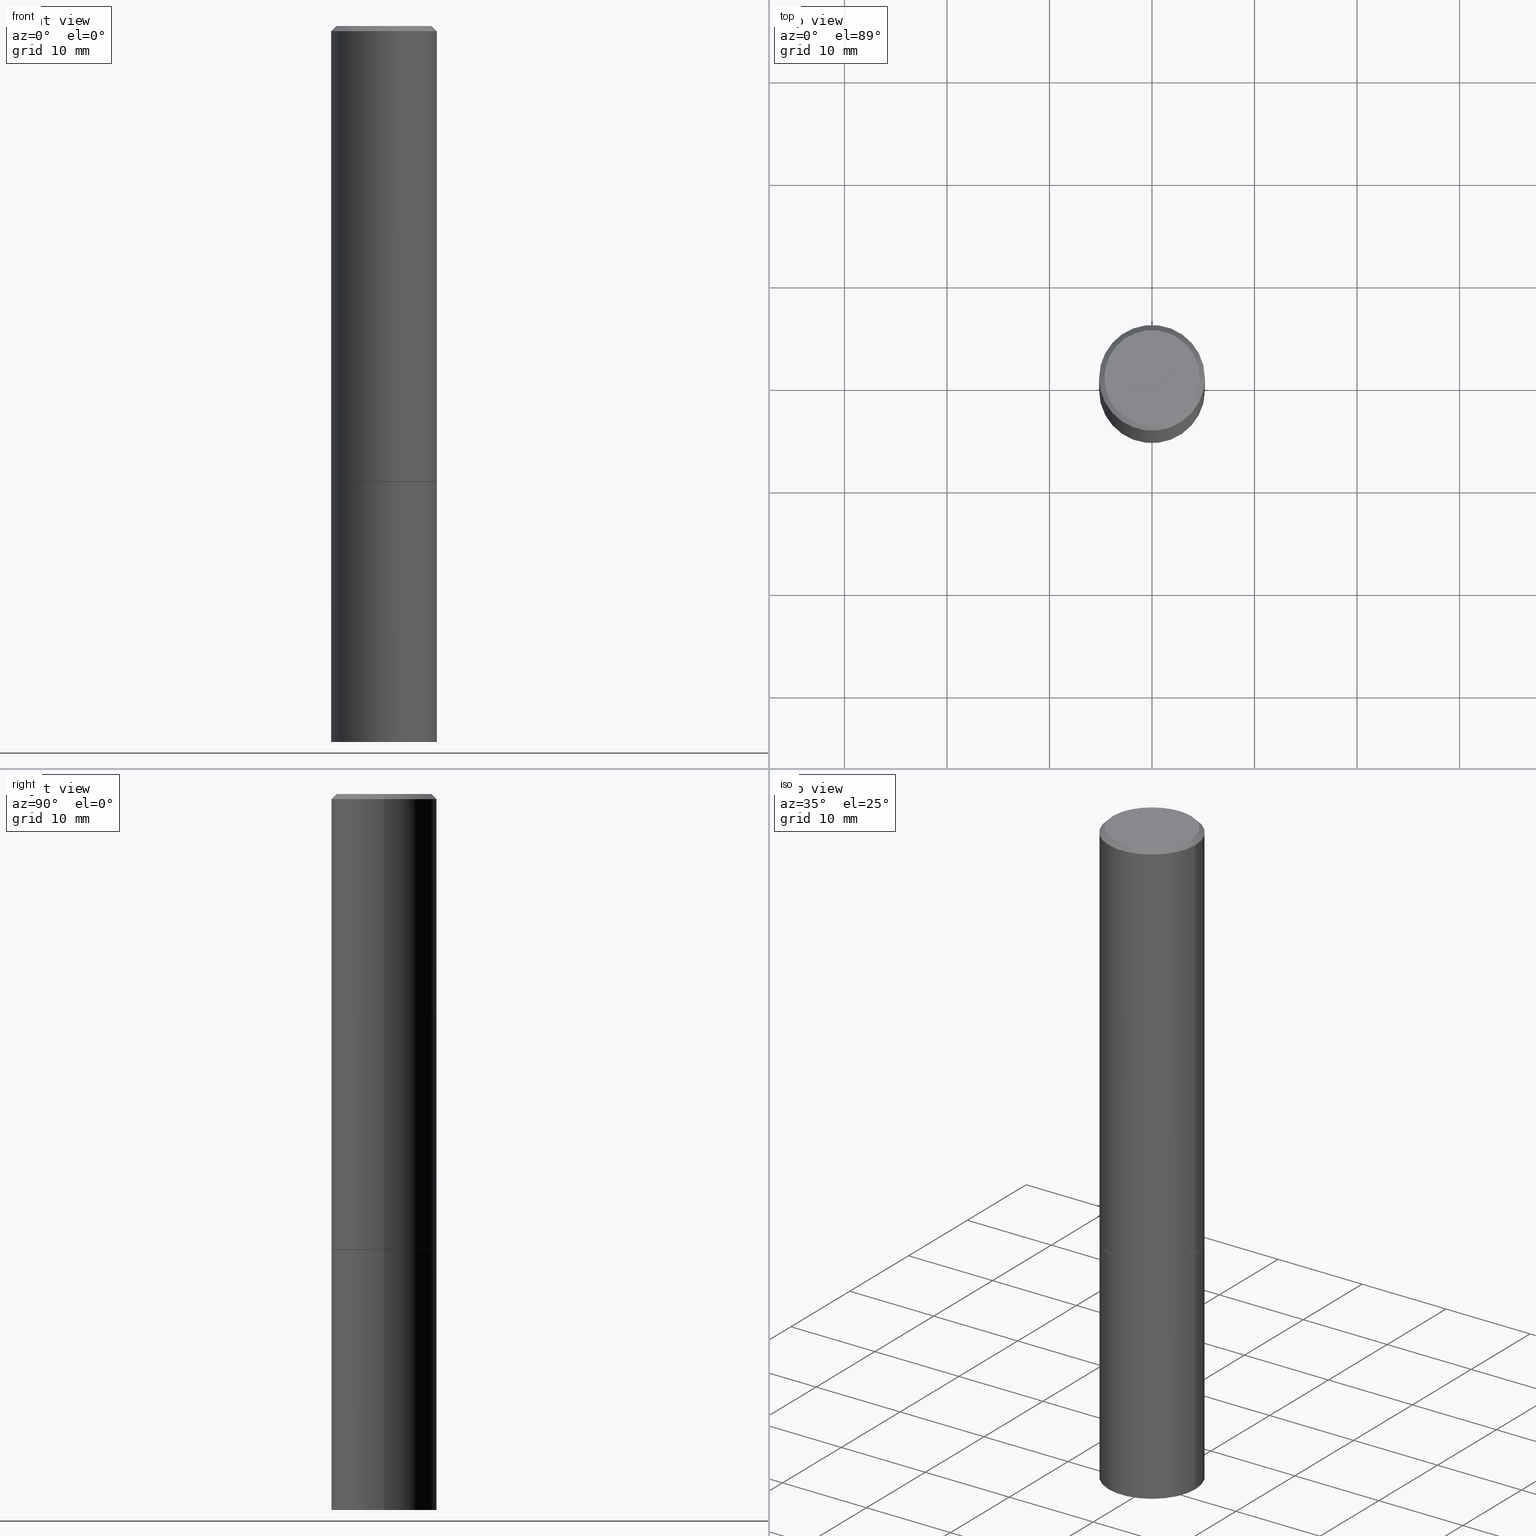
[diagram: canonical four-view strip — front | top / right | iso, engineering-drawing reading convention]
A machine part, canonical four-view strip (front | top / right | iso — engineering-drawing reading convention). The complete STEP part file that produces these views, byte-faithful:
ISO-10303-21;
HEADER;
FILE_DESCRIPTION (( 'STEP AP203' ),
    '1' );
FILE_NAME ('39151.STEP',
    '2023-03-21T20:58:42',
    ( '' ),
    ( '' ),
    'SwSTEP 2.0',
    'SolidWorks 2022',
    '' );
FILE_SCHEMA (( 'CONFIG_CONTROL_DESIGN' ));
ENDSEC;

DATA;
#1 = DIRECTION ( 'NONE',  ( 0.7071067811864267805, -2.468850131080992517E-15, 0.7071067811866682540 ) ) ;
#2 = CC_DESIGN_PERSON_AND_ORGANIZATION_ASSIGNMENT ( #91, #379, ( #121 ) ) ;
#3 = EDGE_CURVE ( 'NONE', #354, #133, #80, .T. ) ;
#4 = CARTESIAN_POINT ( 'NONE',  ( 0.2030999999999999472, -1.418239719838080381E-15, 9.903515031641543342E-30 ) ) ;
#5 = AXIS2_PLACEMENT_3D ( 'NONE', #342, #197, #221 ) ;
#6 = DIRECTION ( 'NONE',  ( 2.445468806185136597E-29, -3.491481338843145583E-15, -1.000000000000000000 ) ) ;
#7 = CARTESIAN_POINT ( 'NONE',  ( -0.2030999999999998362, 1.348410093061216491E-15, -0.02000000000000004552 ) ) ;
#8 = DIRECTION ( 'NONE',  ( 1.000000000000000000, -6.982962677686264344E-15, 0.000000000000000000 ) ) ;
#9 = CONICAL_SURFACE ( 'NONE', #161, 751.2258538476739886, 1.518436449235074148 ) ;
#10 = DIRECTION ( 'NONE',  ( 1.000000000000000000, -6.982962677686266711E-15, 4.876176775795935793E-29 ) ) ;
#11 = ORIENTED_EDGE ( 'NONE', *, *, #185, .T. ) ;
#12 = CARTESIAN_POINT ( 'NONE',  ( 0.1830999999999998462, -1.359676976758113188E-15, 9.224940175330600101E-30 ) ) ;
#13 = EDGE_LOOP ( 'NONE', ( #76, #79 ) ) ;
#14 = ADVANCED_FACE ( 'NONE', ( #208 ), #17, .T. ) ;
#15 = CARTESIAN_POINT ( 'NONE',  ( 0.2030999999999997530, -1.099494082516604752E-14, -2.750000000000000000 ) ) ;
#16 = ORIENTED_EDGE ( 'NONE', *, *, #56, .T. ) ;
#17 = CONICAL_SURFACE ( 'NONE', #236, 0.2030999999999998362, 0.7853981633974469467 ) ;
#18 = CC_DESIGN_APPROVAL ( #280, ( #100 ) ) ;
#19 = CARTESIAN_POINT ( 'NONE',  ( -0.1830999999999998462, 1.313495279672785236E-15, -9.063697641761070783E-30 ) ) ;
#20 = ORIENTED_EDGE ( 'NONE', *, *, #56, .F. ) ;
#21 = APPROVAL_DATE_TIME ( #358, #280 ) ;
#22 = ORIENTED_EDGE ( 'NONE', *, *, #339, .F. ) ;
#23 = CALENDAR_DATE ( 2023, 21, 3 ) ;
#24 = ORIENTED_EDGE ( 'NONE', *, *, #192, .T. ) ;
#25 = CIRCLE ( 'NONE', #383, 0.2021000000000000019 ) ;
#26 = APPROVAL_DATE_TIME ( #260, #325 ) ;
#27 = ORIENTED_EDGE ( 'NONE', *, *, #155, .T. ) ;
#28 = COORDINATED_UNIVERSAL_TIME_OFFSET ( 5, 0, .BEHIND. ) ;
#29 = VERTEX_POINT ( 'NONE', #120 ) ;
#30 = EDGE_CURVE ( 'NONE', #298, #92, #232, .T. ) ;
#31 = APPROVAL_ROLE ( '' ) ;
#32 = EDGE_LOOP ( 'NONE', ( #179, #84, #169 ) ) ;
#33 = CLOSED_SHELL ( 'NONE', ( #195, #253, #58, #35, #167 ) ) ;
#34 = DIRECTION ( 'NONE',  ( -2.445468806185136597E-29, 3.491481338843145583E-15, 1.000000000000000000 ) ) ;
#35 = ADVANCED_FACE ( 'NONE', ( #295 ), #363, .T. ) ;
#36 = CARTESIAN_POINT ( 'NONE',  ( 4.279570410823988484E-29, -6.110092342975504671E-15, -1.750000000000000000 ) ) ;
#37 = EDGE_CURVE ( 'NONE', #201, #92, #284, .T. ) ;
#38 = LINE ( 'NONE', #390, #107 ) ;
#39 = CARTESIAN_POINT ( 'NONE',  ( 0.2031000000000000028, -1.418239719838080775E-15, 9.903515031641546145E-30 ) ) ;
#40 = CIRCLE ( 'NONE', #372, 0.2031000000000000028 ) ;
#41 = CARTESIAN_POINT ( 'NONE',  ( 0.000000000000000000, 0.000000000000000000, 0.000000000000000000 ) ) ;
#42 = FACE_OUTER_BOUND ( 'NONE', #255, .T. ) ;
#43 = CARTESIAN_POINT ( 'NONE',  ( 0.2031000000000000028, -7.528332062813585446E-15, -1.750000000000000000 ) ) ;
#44 = AXIS2_PLACEMENT_3D ( 'NONE', #41, #338, #303 ) ;
#45 = CARTESIAN_POINT ( 'NONE',  ( -4.871854198842910760E-19, -9.564410284714797883E-15, -2.739355980027615711 ) ) ;
#46 = EDGE_CURVE ( 'NONE', #173, #259, #269, .T. ) ;
#47 = EDGE_LOOP ( 'NONE', ( #57, #345, #328 ) ) ;
#48 = DIRECTION ( 'NONE',  ( 2.445468806185136597E-29, -3.491481338843145583E-15, -1.000000000000000000 ) ) ;
#49 = ORIENTED_EDGE ( 'NONE', *, *, #30, .T. ) ;
#50 = AXIS2_PLACEMENT_3D ( 'NONE', #69, #166, #239 ) ;
#51 = ORIENTED_EDGE ( 'NONE', *, *, #3, .F. ) ;
#52 = PERSON_AND_ORGANIZATION_ROLE ( 'design_owner' ) ;
#53 = ORIENTED_EDGE ( 'NONE', *, *, #222, .F. ) ;
#54 = AXIS2_PLACEMENT_3D ( 'NONE', #302, #63, #371 ) ;
#55 = LOCAL_TIME ( 16, 58, 42.00000000000000000, #146 ) ;
#56 = EDGE_CURVE ( 'NONE', #165, #173, #38, .T. ) ;
#57 = ORIENTED_EDGE ( 'NONE', *, *, #293, .F. ) ;
#58 = ADVANCED_FACE ( 'NONE', ( #184 ), #9, .F. ) ;
#59 = DATE_AND_TIME ( #23, #157 ) ;
#60 = PRODUCT_DEFINITION_SHAPE ( 'NONE', 'NONE',  #100 ) ;
#61 = CYLINDRICAL_SURFACE ( 'NONE', #294, 0.2031000000000000028 ) ;
#62 = APPROVAL_PERSON_ORGANIZATION ( #360, #325, #86 ) ;
#63 = DIRECTION ( 'NONE',  ( 2.438088387897960049E-29, -3.491481338843145188E-15, -1.000000000000000000 ) ) ;
#64 = DIRECTION ( 'NONE',  ( 1.000000000000000000, -6.982962677686266711E-15, 0.000000000000000000 ) ) ;
#65 = LINE ( 'NONE', #39, #300 ) ;
#66 = AXIS2_PLACEMENT_3D ( 'NONE', #97, #217, #190 ) ;
#67 = CARTESIAN_POINT ( 'NONE',  ( 0.000000000000000000, 0.000000000000000000, 0.000000000000000000 ) ) ;
#68 = LOCAL_TIME ( 16, 58, 42.00000000000000000, #139 ) ;
#69 = CARTESIAN_POINT ( 'NONE',  ( 4.890937612370284544E-31, -6.982962677686307633E-17, -0.02000000000000004552 ) ) ;
#70 = CARTESIAN_POINT ( 'NONE',  ( 0.2030999999999998362, -1.463196770124260168E-15, -0.02000000000000004552 ) ) ;
#71 = ADVANCED_FACE ( 'NONE', ( #123 ), #301, .F. ) ;
#72 = PLANE ( 'NONE',  #362 ) ;
#73 = CC_DESIGN_PERSON_AND_ORGANIZATION_ASSIGNMENT ( #83, #205, ( #238 ) ) ;
#74 = EDGE_CURVE ( 'NONE', #259, #173, #229, .T. ) ;
#75 = DIRECTION ( 'NONE',  ( -2.445468806185136597E-29, 3.491481338843145583E-15, 1.000000000000000000 ) ) ;
#76 = ORIENTED_EDGE ( 'NONE', *, *, #74, .T. ) ;
#77 = AXIS2_PLACEMENT_3D ( 'NONE', #336, #154, #64 ) ;
#78 = FACE_OUTER_BOUND ( 'NONE', #82, .T. ) ;
#79 = ORIENTED_EDGE ( 'NONE', *, *, #46, .T. ) ;
#80 = CIRCLE ( 'NONE', #361, 0.2021000000000000019 ) ;
#81 = AXIS2_PLACEMENT_3D ( 'NONE', #149, #144, #172 ) ;
#82 = EDGE_LOOP ( 'NONE', ( #122, #150, #131, #108 ) ) ;
#83 = PERSON_AND_ORGANIZATION ( #119, #376 ) ;
#84 = ORIENTED_EDGE ( 'NONE', *, *, #293, .T. ) ;
#85 = ADVANCED_FACE ( 'NONE', ( #159 ), #278, .T. ) ;
#86 = APPROVAL_ROLE ( '' ) ;
#87 = EDGE_CURVE ( 'NONE', #133, #348, #365, .T. ) ;
#88 = EDGE_LOOP ( 'NONE', ( #20, #145, #198, #389 ) ) ;
#89 = ADVANCED_BREP_SHAPE_REPRESENTATION ( '39151', ( #343, #207, #81 ), #95 ) ;
#90 = AXIS2_PLACEMENT_3D ( 'NONE', #164, #48, #312 ) ;
#91 = PERSON_AND_ORGANIZATION ( #119, #376 ) ;
#92 = VERTEX_POINT ( 'NONE', #7 ) ;
#93 = DIRECTION ( 'NONE',  ( 1.000000000000000000, -6.982962677686269866E-15, 0.000000000000000000 ) ) ;
#94 = CARTESIAN_POINT ( 'NONE',  ( 0.2021000000000000019, -7.521349100135901010E-15, -1.750000000000000222 ) ) ;
#95 =( GEOMETRIC_REPRESENTATION_CONTEXT ( 3 ) GLOBAL_UNCERTAINTY_ASSIGNED_CONTEXT ( ( #148 ) ) GLOBAL_UNIT_ASSIGNED_CONTEXT ( ( #105, #249, #353 ) ) REPRESENTATION_CONTEXT ( 'NONE', 'WORKASPACE' ) );
#96 = CARTESIAN_POINT ( 'NONE',  ( -0.2031000000000000028, -6.412720716068313768E-15, -1.750000000000000000 ) ) ;
#97 = CARTESIAN_POINT ( 'NONE',  ( 0.000000000000000000, 0.000000000000000000, 0.000000000000000000 ) ) ;
#98 = CYLINDRICAL_SURFACE ( 'NONE', #44, 0.2030999999999999472 ) ;
#99 = CARTESIAN_POINT ( 'NONE',  ( -0.2030999999999999472, 1.443112296328763103E-15, -9.990357168307711400E-30 ) ) ;
#100 = PRODUCT_DEFINITION ( 'UNKNOWN', '', #238, #380 ) ;
#101 = LENGTH_MEASURE_WITH_UNIT ( LENGTH_MEASURE( 0.02539999999999999897 ), #132 );
#102 = AXIS2_PLACEMENT_3D ( 'NONE', #194, #282, #347 ) ;
#103 = DIRECTION ( 'NONE',  ( 2.438088387897960049E-29, -3.491481338843145188E-15, -1.000000000000000000 ) ) ;
#104 = EDGE_CURVE ( 'NONE', #29, #92, #275, .T. ) ;
#105 =( CONVERSION_BASED_UNIT ( 'INCH', #101 ) LENGTH_UNIT ( ) NAMED_UNIT ( #350 ) );
#106 = LINE ( 'NONE', #307, #203 ) ;
#107 = VECTOR ( 'NONE', #272, 39.37007874015748143 ) ;
#108 = ORIENTED_EDGE ( 'NONE', *, *, #192, .F. ) ;
#109 = DIRECTION ( 'NONE',  ( 1.000000000000000000, -6.982962677686269077E-15, 0.000000000000000000 ) ) ;
#110 = DATE_TIME_ROLE ( 'classification_date' ) ;
#111 = COORDINATED_UNIVERSAL_TIME_OFFSET ( 5, 0, .BEHIND. ) ;
#112 = DIRECTION ( 'NONE',  ( -0.7071067811865465735, 2.468850131082246805E-15, -0.7071067811865484609 ) ) ;
#113 = AXIS2_PLACEMENT_3D ( 'NONE', #276, #370, #153 ) ;
#114 = VECTOR ( 'NONE', #212, 39.37007874015748143 ) ;
#115 = DIRECTION ( 'NONE',  ( 1.000000000000000000, -6.982962677686269077E-15, 0.000000000000000000 ) ) ;
#116 = APPROVAL ( #351, 'UNSPECIFIED' ) ;
#117 = CC_DESIGN_PERSON_AND_ORGANIZATION_ASSIGNMENT ( #384, #235, ( #100 ) ) ;
#118 = PERSON_AND_ORGANIZATION ( #119, #376 ) ;
#119 = PERSON ( 'UNSPECIFIED', 'UNSPECIFIED', 'UNSPECIFIED', ('UNSPECIFIED'), ('UNSPECIFIED'), ('UNSPECIFIED') ) ;
#120 = CARTESIAN_POINT ( 'NONE',  ( -0.2031000000000000583, -1.645102947877997012E-15, -1.748999999999999888 ) ) ;
#121 = SECURITY_CLASSIFICATION ( '', '', #324 ) ;
#122 = ORIENTED_EDGE ( 'NONE', *, *, #262, .T. ) ;
#123 = FACE_OUTER_BOUND ( 'NONE', #171, .T. ) ;
#124 = DIRECTION ( 'NONE',  ( 1.000000000000000000, -6.982962677686264344E-15, 0.000000000000000000 ) ) ;
#125 = FACE_OUTER_BOUND ( 'NONE', #234, .T. ) ;
#126 = CC_DESIGN_PERSON_AND_ORGANIZATION_ASSIGNMENT ( #387, #52, ( #337 ) ) ;
#127 = DIRECTION ( 'NONE',  ( -2.438088387897960049E-29, 3.491481338843145188E-15, 1.000000000000000000 ) ) ;
#128 = DIRECTION ( 'NONE',  ( -2.445468806185136597E-29, 3.491481338843145583E-15, 1.000000000000000000 ) ) ;
#129 = CARTESIAN_POINT ( 'NONE',  ( -0.2021000000000000019, -4.668787019656119386E-15, -1.750000000000000222 ) ) ;
#130 = APPROVAL_PERSON_ORGANIZATION ( #290, #280, #264 ) ;
#131 = ORIENTED_EDGE ( 'NONE', *, *, #37, .F. ) ;
#132 =( LENGTH_UNIT ( ) NAMED_UNIT ( * ) SI_UNIT ( $, .METRE. ) );
#133 = VERTEX_POINT ( 'NONE', #94 ) ;
#134 = LINE ( 'NONE', #70, #137 ) ;
#135 = LINE ( 'NONE', #193, #151 ) ;
#136 = ORIENTED_EDGE ( 'NONE', *, *, #267, .F. ) ;
#137 = VECTOR ( 'NONE', #317, 39.37007874015748143 ) ;
#138 = VERTEX_POINT ( 'NONE', #332 ) ;
#139 = COORDINATED_UNIVERSAL_TIME_OFFSET ( 5, 0, .BEHIND. ) ;
#140 = CARTESIAN_POINT ( 'NONE',  ( 4.279570410823989044E-29, -6.110092342975505460E-15, -1.750000000000000222 ) ) ;
#141 = EDGE_LOOP ( 'NONE', ( #237, #263, #24, #206 ) ) ;
#142 = AXIS2_PLACEMENT_3D ( 'NONE', #364, #388, #93 ) ;
#143 = CC_DESIGN_APPROVAL ( #116, ( #121 ) ) ;
#144 = DIRECTION ( 'NONE',  ( 0.000000000000000000, 0.000000000000000000, 1.000000000000000000 ) ) ;
#145 = ORIENTED_EDGE ( 'NONE', *, *, #377, .T. ) ;
#146 = COORDINATED_UNIVERSAL_TIME_OFFSET ( 5, 0, .BEHIND. ) ;
#147 = DIRECTION ( 'NONE',  ( -1.000000000000000000, 6.982962677686266711E-15, 0.000000000000000000 ) ) ;
#148 = UNCERTAINTY_MEASURE_WITH_UNIT (LENGTH_MEASURE( 1.000000000000000082E-05 ), #105, 'distance_accuracy_value', 'NONE');
#149 = CARTESIAN_POINT ( 'NONE',  ( 0.000000000000000000, 0.000000000000000000, 0.000000000000000000 ) ) ;
#150 = ORIENTED_EDGE ( 'NONE', *, *, #104, .T. ) ;
#151 = VECTOR ( 'NONE', #281, 39.37007874015748143 ) ;
#152 = DIRECTION ( 'NONE',  ( -2.445468806185136597E-29, 3.491481338843145583E-15, 1.000000000000000000 ) ) ;
#153 = DIRECTION ( 'NONE',  ( 1.000000000000000000, -6.982962677686269077E-15, 0.000000000000000000 ) ) ;
#154 = DIRECTION ( 'NONE',  ( -2.445468806185136597E-29, 3.491481338843145583E-15, 1.000000000000000000 ) ) ;
#155 = EDGE_CURVE ( 'NONE', #318, #298, #333, .T. ) ;
#156 = EDGE_CURVE ( 'NONE', #250, #165, #176, .T. ) ;
#157 = LOCAL_TIME ( 16, 58, 42.00000000000000000, #111 ) ;
#158 = DIRECTION ( 'NONE',  ( -2.445468806185136877E-29, 3.491481338843145188E-15, 1.000000000000000000 ) ) ;
#159 = FACE_OUTER_BOUND ( 'NONE', #230, .T. ) ;
#160 = DIRECTION ( 'NONE',  ( -0.7071067811864267805, 7.493145998869918709E-15, 0.7071067811866682540 ) ) ;
#161 = AXIS2_PLACEMENT_3D ( 'NONE', #241, #6, #306 ) ;
#162 = DIRECTION ( 'NONE',  ( -2.445468806185136597E-29, 3.491481338843145583E-15, 1.000000000000000000 ) ) ;
#163 = FACE_OUTER_BOUND ( 'NONE', #47, .T. ) ;
#164 = CARTESIAN_POINT ( 'NONE',  ( 4.890937612370284544E-31, -6.982962677686307633E-17, -0.02000000000000004552 ) ) ;
#165 = VERTEX_POINT ( 'NONE', #248 ) ;
#166 = DIRECTION ( 'NONE',  ( -2.445468806185136597E-29, 3.491481338843145583E-15, 1.000000000000000000 ) ) ;
#167 = ADVANCED_FACE ( 'NONE', ( #244 ), #366, .F. ) ;
#168 = CARTESIAN_POINT ( 'NONE',  ( 4.279570410823989044E-29, -6.110092342975505460E-15, -1.750000000000000222 ) ) ;
#169 = ORIENTED_EDGE ( 'NONE', *, *, #156, .F. ) ;
#170 = APPLICATION_PROTOCOL_DEFINITION ( 'international standard', 'config_control_design', 1994, #315 ) ;
#171 = EDGE_LOOP ( 'NONE', ( #22, #51 ) ) ;
#172 = DIRECTION ( 'NONE',  ( 1.000000000000000000, 0.000000000000000000, 0.000000000000000000 ) ) ;
#173 = VERTEX_POINT ( 'NONE', #96 ) ;
#174 = CALENDAR_DATE ( 2023, 21, 3 ) ;
#175 = DIRECTION ( 'NONE',  ( 2.445468806185136597E-29, -3.491481338843145583E-15, -1.000000000000000000 ) ) ;
#176 = CIRCLE ( 'NONE', #223, 0.2031000000000000028 ) ;
#177 = CIRCLE ( 'NONE', #5, 0.2031000000000000028 ) ;
#178 = APPLICATION_PROTOCOL_DEFINITION ( 'international standard', 'config_control_design', 1994, #330 ) ;
#179 = ORIENTED_EDGE ( 'NONE', *, *, #304, .F. ) ;
#180 = CALENDAR_DATE ( 2023, 21, 3 ) ;
#181 = CARTESIAN_POINT ( 'NONE',  ( 0.000000000000000000, 0.000000000000000000, 0.000000000000000000 ) ) ;
#182 = VECTOR ( 'NONE', #112, 39.37007874015748143 ) ;
#183 = AXIS2_PLACEMENT_3D ( 'NONE', #314, #75, #10 ) ;
#184 = FACE_OUTER_BOUND ( 'NONE', #32, .T. ) ;
#185 = EDGE_CURVE ( 'NONE', #92, #201, #274, .T. ) ;
#186 = DIRECTION ( 'NONE',  ( -2.445468806185136877E-29, 3.491481338843145188E-15, 1.000000000000000000 ) ) ;
#187 = DIRECTION ( 'NONE',  ( 1.000000000000000000, -6.982962677686269866E-15, 0.000000000000000000 ) ) ;
#188 = AXIS2_PLACEMENT_3D ( 'NONE', #168, #279, #109 ) ;
#189 = CIRCLE ( 'NONE', #209, 0.2031000000000000028 ) ;
#190 = DIRECTION ( 'NONE',  ( 1.000000000000000000, -6.982962677686266711E-15, 4.876176775795935793E-29 ) ) ;
#191 = DIRECTION ( 'NONE',  ( -2.445468806185136597E-29, 3.491481338843145583E-15, 1.000000000000000000 ) ) ;
#192 = EDGE_CURVE ( 'NONE', #348, #201, #273, .T. ) ;
#193 = CARTESIAN_POINT ( 'NONE',  ( 4.871854200182712814E-19, -9.564410284714797883E-15, -2.739355980027615711 ) ) ;
#194 = CARTESIAN_POINT ( 'NONE',  ( 1.029773090543019914E-27, -1.470243055147599021E-13, -42.10943472018509937 ) ) ;
#195 = ADVANCED_FACE ( 'NONE', ( #125 ), #61, .T. ) ;
#196 = VECTOR ( 'NONE', #186, 39.37007874015748143 ) ;
#197 = DIRECTION ( 'NONE',  ( -2.445468806185136597E-29, 3.491481338843145583E-15, 1.000000000000000000 ) ) ;
#198 = ORIENTED_EDGE ( 'NONE', *, *, #222, .T. ) ;
#199 = EDGE_CURVE ( 'NONE', #298, #318, #285, .T. ) ;
#200 = CYLINDRICAL_SURFACE ( 'NONE', #183, 0.2030999999999999472 ) ;
#201 = VERTEX_POINT ( 'NONE', #271 ) ;
#202 = AXIS2_PLACEMENT_3D ( 'NONE', #299, #127, #218 ) ;
#203 = VECTOR ( 'NONE', #160, 39.37007874015748143 ) ;
#204 = ORIENTED_EDGE ( 'NONE', *, *, #156, .T. ) ;
#205 = PERSON_AND_ORGANIZATION_ROLE ( 'design_supplier' ) ;
#206 = ORIENTED_EDGE ( 'NONE', *, *, #185, .F. ) ;
#207 = MANIFOLD_SOLID_BREP ( 'Body-Move/Copy2[2]', #310 ) ;
#208 = FACE_OUTER_BOUND ( 'NONE', #349, .T. ) ;
#209 = AXIS2_PLACEMENT_3D ( 'NONE', #256, #162, #8 ) ;
#210 = DATE_TIME_ROLE ( 'creation_date' ) ;
#211 = ORIENTED_EDGE ( 'NONE', *, *, #30, .F. ) ;
#212 = DIRECTION ( 'NONE',  ( -2.445468806185136877E-29, 3.491481338843145188E-15, 1.000000000000000000 ) ) ;
#213 = DIRECTION ( 'NONE',  ( 1.000000000000000000, -6.982962677686266711E-15, 4.876176775795935793E-29 ) ) ;
#214 = ADVANCED_FACE ( 'NONE', ( #369 ), #98, .T. ) ;
#215 = CC_DESIGN_APPROVAL ( #325, ( #238 ) ) ;
#216 = DIRECTION ( 'NONE',  ( 1.000000000000000000, -6.982962677686266711E-15, 4.876176775795935793E-29 ) ) ;
#217 = DIRECTION ( 'NONE',  ( -2.445468806185136597E-29, 3.491481338843145583E-15, 1.000000000000000000 ) ) ;
#218 = DIRECTION ( 'NONE',  ( 1.000000000000000000, -6.982962677686265922E-15, 4.876176775795935793E-29 ) ) ;
#219 = CARTESIAN_POINT ( 'NONE',  ( 0.000000000000000000, 0.000000000000000000, 0.000000000000000000 ) ) ;
#220 = LINE ( 'NONE', #45, #225 ) ;
#221 = DIRECTION ( 'NONE',  ( 1.000000000000000000, -6.982962677686264344E-15, 0.000000000000000000 ) ) ;
#222 = EDGE_CURVE ( 'NONE', #250, #259, #65, .T. ) ;
#223 = AXIS2_PLACEMENT_3D ( 'NONE', #331, #340, #124 ) ;
#224 = CARTESIAN_POINT ( 'NONE',  ( 6.725039217009124520E-29, -9.601573681818649859E-15, -2.750000000000000000 ) ) ;
#225 = VECTOR ( 'NONE', #286, 39.37007874015748143 ) ;
#226 = DIRECTION ( 'NONE',  ( -2.445468806185136597E-29, 3.491481338843145583E-15, 1.000000000000000000 ) ) ;
#227 = MECHANICAL_CONTEXT ( 'NONE', #330, 'mechanical' ) ;
#228 = APPROVAL_DATE_TIME ( #292, #116 ) ;
#229 = CIRCLE ( 'NONE', #367, 0.2031000000000000028 ) ;
#230 = EDGE_LOOP ( 'NONE', ( #265, #240, #270, #289 ) ) ;
#231 = PERSON_AND_ORGANIZATION_ROLE ( 'creator' ) ;
#232 = LINE ( 'NONE', #326, #182 ) ;
#233 = SHAPE_DEFINITION_REPRESENTATION ( #60, #89 ) ;
#234 = EDGE_LOOP ( 'NONE', ( #204, #16, #316, #53 ) ) ;
#235 = PERSON_AND_ORGANIZATION_ROLE ( 'creator' ) ;
#236 = AXIS2_PLACEMENT_3D ( 'NONE', #261, #175, #147 ) ;
#237 = ORIENTED_EDGE ( 'NONE', *, *, #104, .F. ) ;
#238 = PRODUCT_DEFINITION_FORMATION_WITH_SPECIFIED_SOURCE ( 'ANY', '', #337, .NOT_KNOWN. ) ;
#239 = DIRECTION ( 'NONE',  ( 1.000000000000000000, -6.982962677686266711E-15, 0.000000000000000000 ) ) ;
#240 = ORIENTED_EDGE ( 'NONE', *, *, #335, .T. ) ;
#241 = CARTESIAN_POINT ( 'NONE',  ( 1.029773090543019914E-27, -1.470243055147599021E-13, -42.10943472018509937 ) ) ;
#242 = ADVANCED_FACE ( 'NONE', ( #78 ), #200, .T. ) ;
#243 = ADVANCED_FACE ( 'NONE', ( #42 ), #72, .F. ) ;
#244 = FACE_OUTER_BOUND ( 'NONE', #13, .T. ) ;
#245 = LOCAL_TIME ( 16, 58, 42.00000000000000000, #28 ) ;
#246 = DIRECTION ( 'NONE',  ( 1.000000000000000000, -6.982962677686266711E-15, 4.876176775795935793E-29 ) ) ;
#247 = CARTESIAN_POINT ( 'NONE',  ( 0.2021000000000000019, -7.521349100135901010E-15, -1.750000000000000222 ) ) ;
#248 = CARTESIAN_POINT ( 'NONE',  ( -0.2030999999999997530, -8.183333961980571451E-15, -2.750000000000000000 ) ) ;
#249 =( NAMED_UNIT ( * ) PLANE_ANGLE_UNIT ( ) SI_UNIT ( $, .RADIAN. ) );
#250 = VERTEX_POINT ( 'NONE', #15 ) ;
#251 = DIRECTION ( 'NONE',  ( -1.000000000000000000, 6.982962677686265922E-15, -4.876176775795935793E-29 ) ) ;
#252 = CC_DESIGN_DATE_AND_TIME_ASSIGNMENT ( #327, #110, ( #121 ) ) ;
#253 = ADVANCED_FACE ( 'NONE', ( #163 ), #305, .F. ) ;
#254 = DIRECTION ( 'NONE',  ( 1.000000000000000000, -6.982962677686269077E-15, 0.000000000000000000 ) ) ;
#255 = EDGE_LOOP ( 'NONE', ( #357, #27 ) ) ;
#256 = CARTESIAN_POINT ( 'NONE',  ( 4.277124942017804002E-29, -6.106600861636660875E-15, -1.748999999999999888 ) ) ;
#257 = LOCAL_TIME ( 16, 58, 42.00000000000000000, #319 ) ;
#258 = CARTESIAN_POINT ( 'NONE',  ( 4.279570410823989044E-29, -6.110092342975505460E-15, -1.750000000000000222 ) ) ;
#259 = VERTEX_POINT ( 'NONE', #43 ) ;
#260 = DATE_AND_TIME ( #297, #68 ) ;
#261 = CARTESIAN_POINT ( 'NONE',  ( 4.890937612370284544E-31, -6.982962677686307633E-17, -0.02000000000000004552 ) ) ;
#262 = EDGE_CURVE ( 'NONE', #348, #29, #177, .T. ) ;
#263 = ORIENTED_EDGE ( 'NONE', *, *, #355, .T. ) ;
#264 = APPROVAL_ROLE ( '' ) ;
#265 = ORIENTED_EDGE ( 'NONE', *, *, #339, .T. ) ;
#266 = ADVANCED_FACE ( 'NONE', ( #344 ), #352, .T. ) ;
#267 = EDGE_CURVE ( 'NONE', #318, #201, #134, .T. ) ;
#268 = ORIENTED_EDGE ( 'NONE', *, *, #355, .F. ) ;
#269 = CIRCLE ( 'NONE', #142, 0.2031000000000000028 ) ;
#270 = ORIENTED_EDGE ( 'NONE', *, *, #262, .F. ) ;
#271 = CARTESIAN_POINT ( 'NONE',  ( 0.2030999999999998362, -1.463196770124260168E-15, -0.02000000000000004552 ) ) ;
#272 = DIRECTION ( 'NONE',  ( -2.445468806185136877E-29, 3.491481338843145188E-15, 1.000000000000000000 ) ) ;
#273 = LINE ( 'NONE', #4, #114 ) ;
#274 = CIRCLE ( 'NONE', #77, 0.2030999999999998362 ) ;
#275 = LINE ( 'NONE', #99, #196 ) ;
#276 = CARTESIAN_POINT ( 'NONE',  ( 4.279570410823989044E-29, -6.110092342975505460E-15, -1.750000000000000222 ) ) ;
#277 = DIRECTION ( 'NONE',  ( 1.000000000000000000, -6.982962677686264344E-15, 0.000000000000000000 ) ) ;
#278 = CONICAL_SURFACE ( 'NONE', #113, 0.2021000000000000019, 0.7853981633972775267 ) ;
#279 = DIRECTION ( 'NONE',  ( -2.445468806185136597E-29, 3.491481338843145583E-15, 1.000000000000000000 ) ) ;
#280 = APPROVAL ( #386, 'UNSPECIFIED' ) ;
#281 = DIRECTION ( 'NONE',  ( 0.9986295347545742773, -7.033825938271997912E-15, -0.05233595624293643084 ) ) ;
#282 = DIRECTION ( 'NONE',  ( 2.445468806185136597E-29, -3.491481338843145583E-15, -1.000000000000000000 ) ) ;
#283 = ORIENTED_EDGE ( 'NONE', *, *, #155, .F. ) ;
#284 = CIRCLE ( 'NONE', #50, 0.2030999999999998362 ) ;
#285 = CIRCLE ( 'NONE', #334, 0.1830999999999998462 ) ;
#286 = DIRECTION ( 'NONE',  ( -0.9986295347545742773, 6.790662755453668466E-15, -0.05233595624293643084 ) ) ;
#287 = EDGE_LOOP ( 'NONE', ( #385, #291, #329, #268 ) ) ;
#288 = CALENDAR_DATE ( 2023, 21, 3 ) ;
#289 = ORIENTED_EDGE ( 'NONE', *, *, #87, .F. ) ;
#290 = PERSON_AND_ORGANIZATION ( #119, #376 ) ;
#291 = ORIENTED_EDGE ( 'NONE', *, *, #3, .T. ) ;
#292 = DATE_AND_TIME ( #174, #55 ) ;
#293 = EDGE_CURVE ( 'NONE', #138, #165, #220, .T. ) ;
#294 = AXIS2_PLACEMENT_3D ( 'NONE', #181, #34, #213 ) ;
#295 = FACE_OUTER_BOUND ( 'NONE', #88, .T. ) ;
#296 = CC_DESIGN_PERSON_AND_ORGANIZATION_ASSIGNMENT ( #321, #231, ( #238 ) ) ;
#297 = CALENDAR_DATE ( 2023, 21, 3 ) ;
#298 = VERTEX_POINT ( 'NONE', #19 ) ;
#299 = CARTESIAN_POINT ( 'NONE',  ( 4.279570410823989044E-29, -6.110092342975505460E-15, -1.750000000000000222 ) ) ;
#300 = VECTOR ( 'NONE', #158, 39.37007874015748143 ) ;
#301 = PLANE ( 'NONE',  #202 ) ;
#302 = CARTESIAN_POINT ( 'NONE',  ( 1.418239719838123571E-15, 0.2030999999999938965, -1.750000000000000666 ) ) ;
#303 = DIRECTION ( 'NONE',  ( 1.000000000000000000, -6.982962677686266711E-15, 4.876176775795935793E-29 ) ) ;
#304 = EDGE_CURVE ( 'NONE', #138, #250, #135, .T. ) ;
#305 = CONICAL_SURFACE ( 'NONE', #102, 751.2258538476739886, 1.518436449235074148 ) ;
#306 = DIRECTION ( 'NONE',  ( -1.000000000000000000, 6.982962677686266711E-15, 0.000000000000000000 ) ) ;
#307 = CARTESIAN_POINT ( 'NONE',  ( -0.2021000000000000019, -4.674085474004342577E-15, -1.750000000000000222 ) ) ;
#308 = PRODUCT_RELATED_PRODUCT_CATEGORY ( 'detail', '', ( #337 ) ) ;
#309 = DIRECTION ( 'NONE',  ( -2.445468806185136597E-29, 3.491481338843145583E-15, 1.000000000000000000 ) ) ;
#310 = CLOSED_SHELL ( 'NONE', ( #85, #242, #14, #266, #214, #375, #71, #243 ) ) ;
#311 = CONICAL_SURFACE ( 'NONE', #188, 0.2021000000000000019, 0.7853981633972775267 ) ;
#312 = DIRECTION ( 'NONE',  ( -1.000000000000000000, 6.982962677686266711E-15, 0.000000000000000000 ) ) ;
#313 = ORIENTED_EDGE ( 'NONE', *, *, #199, .F. ) ;
#314 = CARTESIAN_POINT ( 'NONE',  ( 0.000000000000000000, 0.000000000000000000, 0.000000000000000000 ) ) ;
#315 = APPLICATION_CONTEXT ( 'configuration controlled 3d designs of mechanical parts and assemblies' ) ;
#316 = ORIENTED_EDGE ( 'NONE', *, *, #74, .F. ) ;
#317 = DIRECTION ( 'NONE',  ( 0.7071067811865465735, -7.319954787623252890E-15, -0.7071067811865484609 ) ) ;
#318 = VERTEX_POINT ( 'NONE', #12 ) ;
#319 = COORDINATED_UNIVERSAL_TIME_OFFSET ( 5, 0, .BEHIND. ) ;
#320 = ORIENTED_EDGE ( 'NONE', *, *, #37, .T. ) ;
#321 = PERSON_AND_ORGANIZATION ( #119, #376 ) ;
#322 = ORIENTED_EDGE ( 'NONE', *, *, #267, .T. ) ;
#323 = CC_DESIGN_DATE_AND_TIME_ASSIGNMENT ( #59, #210, ( #100 ) ) ;
#324 = SECURITY_CLASSIFICATION_LEVEL ( 'unclassified' ) ;
#325 = APPROVAL ( #356, 'UNSPECIFIED' ) ;
#326 = CARTESIAN_POINT ( 'NONE',  ( -0.2030999999999998362, 1.348410093061216491E-15, -0.02000000000000004552 ) ) ;
#327 = DATE_AND_TIME ( #180, #245 ) ;
#328 = ORIENTED_EDGE ( 'NONE', *, *, #377, .F. ) ;
#329 = ORIENTED_EDGE ( 'NONE', *, *, #87, .T. ) ;
#330 = APPLICATION_CONTEXT ( 'configuration controlled 3d designs of mechanical parts and assemblies' ) ;
#331 = CARTESIAN_POINT ( 'NONE',  ( 6.725039217009124520E-29, -9.601573681818649859E-15, -2.750000000000000000 ) ) ;
#332 = CARTESIAN_POINT ( 'NONE',  ( 6.698669398433785065E-29, -9.564897470134749414E-15, -2.739355980027615711 ) ) ;
#333 = CIRCLE ( 'NONE', #346, 0.1830999999999998462 ) ;
#334 = AXIS2_PLACEMENT_3D ( 'NONE', #67, #152, #246 ) ;
#335 = EDGE_CURVE ( 'NONE', #354, #29, #106, .T. ) ;
#336 = CARTESIAN_POINT ( 'NONE',  ( 4.890937612370284544E-31, -6.982962677686307633E-17, -0.02000000000000004552 ) ) ;
#337 = PRODUCT ( '39151', '39151', '', ( #227 ) ) ;
#338 = DIRECTION ( 'NONE',  ( -2.445468806185136597E-29, 3.491481338843145583E-15, 1.000000000000000000 ) ) ;
#339 = EDGE_CURVE ( 'NONE', #133, #354, #25, .T. ) ;
#340 = DIRECTION ( 'NONE',  ( -2.445468806185136597E-29, 3.491481338843145583E-15, 1.000000000000000000 ) ) ;
#341 = APPROVAL_PERSON_ORGANIZATION ( #118, #116, #31 ) ;
#342 = CARTESIAN_POINT ( 'NONE',  ( 4.277124942017804002E-29, -6.106600861636660875E-15, -1.748999999999999888 ) ) ;
#343 = MANIFOLD_SOLID_BREP ( 'Body-Move/Copy2[1]', #33 ) ;
#344 = FACE_OUTER_BOUND ( 'NONE', #359, .T. ) ;
#345 = ORIENTED_EDGE ( 'NONE', *, *, #304, .T. ) ;
#346 = AXIS2_PLACEMENT_3D ( 'NONE', #219, #128, #216 ) ;
#347 = DIRECTION ( 'NONE',  ( -1.000000000000000000, 6.982962677686266711E-15, 0.000000000000000000 ) ) ;
#348 = VERTEX_POINT ( 'NONE', #374 ) ;
#349 = EDGE_LOOP ( 'NONE', ( #283, #322, #320, #211 ) ) ;
#350 = DIMENSIONAL_EXPONENTS ( 1.000000000000000000, 0.000000000000000000, 0.000000000000000000, 0.000000000000000000, 0.000000000000000000, 0.000000000000000000, 0.000000000000000000 ) ;
#351 = APPROVAL_STATUS ( 'not_yet_approved' ) ;
#352 = CONICAL_SURFACE ( 'NONE', #90, 0.2030999999999998362, 0.7853981633974469467 ) ;
#353 =( NAMED_UNIT ( * ) SI_UNIT ( $, .STERADIAN. ) SOLID_ANGLE_UNIT ( ) );
#354 = VERTEX_POINT ( 'NONE', #129 ) ;
#355 = EDGE_CURVE ( 'NONE', #29, #348, #189, .T. ) ;
#356 = APPROVAL_STATUS ( 'not_yet_approved' ) ;
#357 = ORIENTED_EDGE ( 'NONE', *, *, #199, .T. ) ;
#358 = DATE_AND_TIME ( #288, #257 ) ;
#359 = EDGE_LOOP ( 'NONE', ( #136, #313, #49, #11 ) ) ;
#360 = PERSON_AND_ORGANIZATION ( #119, #376 ) ;
#361 = AXIS2_PLACEMENT_3D ( 'NONE', #140, #381, #115 ) ;
#362 = AXIS2_PLACEMENT_3D ( 'NONE', #373, #103, #251 ) ;
#363 = CYLINDRICAL_SURFACE ( 'NONE', #66, 0.2031000000000000028 ) ;
#364 = CARTESIAN_POINT ( 'NONE',  ( 4.279570410823988484E-29, -6.110092342975504671E-15, -1.750000000000000000 ) ) ;
#365 = LINE ( 'NONE', #247, #382 ) ;
#366 = PLANE ( 'NONE',  #54 ) ;
#367 = AXIS2_PLACEMENT_3D ( 'NONE', #36, #191, #187 ) ;
#368 = CC_DESIGN_SECURITY_CLASSIFICATION ( #121, ( #238 ) ) ;
#369 = FACE_OUTER_BOUND ( 'NONE', #141, .T. ) ;
#370 = DIRECTION ( 'NONE',  ( -2.445468806185136597E-29, 3.491481338843145583E-15, 1.000000000000000000 ) ) ;
#371 = DIRECTION ( 'NONE',  ( -1.000000000000000000, 6.982962677686265922E-15, -4.876176775795935793E-29 ) ) ;
#372 = AXIS2_PLACEMENT_3D ( 'NONE', #224, #226, #277 ) ;
#373 = CARTESIAN_POINT ( 'NONE',  ( 1.278580466284354179E-15, 0.1830999999999998462, -6.392902331421793574E-16 ) ) ;
#374 = CARTESIAN_POINT ( 'NONE',  ( 0.2031000000000000028, -7.524840581474740861E-15, -1.748999999999999888 ) ) ;
#375 = ADVANCED_FACE ( 'NONE', ( #378 ), #311, .T. ) ;
#376 = ORGANIZATION ( 'UNSPECIFIED', 'UNSPECIFIED', '' ) ;
#377 = EDGE_CURVE ( 'NONE', #165, #250, #40, .T. ) ;
#378 = FACE_OUTER_BOUND ( 'NONE', #287, .T. ) ;
#379 = PERSON_AND_ORGANIZATION_ROLE ( 'classification_officer' ) ;
#380 = DESIGN_CONTEXT ( 'detailed design', #315, 'design' ) ;
#381 = DIRECTION ( 'NONE',  ( -2.445468806185136597E-29, 3.491481338843145583E-15, 1.000000000000000000 ) ) ;
#382 = VECTOR ( 'NONE', #1, 39.37007874015748143 ) ;
#383 = AXIS2_PLACEMENT_3D ( 'NONE', #258, #309, #254 ) ;
#384 = PERSON_AND_ORGANIZATION ( #119, #376 ) ;
#385 = ORIENTED_EDGE ( 'NONE', *, *, #335, .F. ) ;
#386 = APPROVAL_STATUS ( 'not_yet_approved' ) ;
#387 = PERSON_AND_ORGANIZATION ( #119, #376 ) ;
#388 = DIRECTION ( 'NONE',  ( -2.445468806185136597E-29, 3.491481338843145583E-15, 1.000000000000000000 ) ) ;
#389 = ORIENTED_EDGE ( 'NONE', *, *, #46, .F. ) ;
#390 = CARTESIAN_POINT ( 'NONE',  ( -0.2031000000000000028, 1.443112296328763497E-15, -9.990357168307714203E-30 ) ) ;
ENDSEC;
END-ISO-10303-21;
